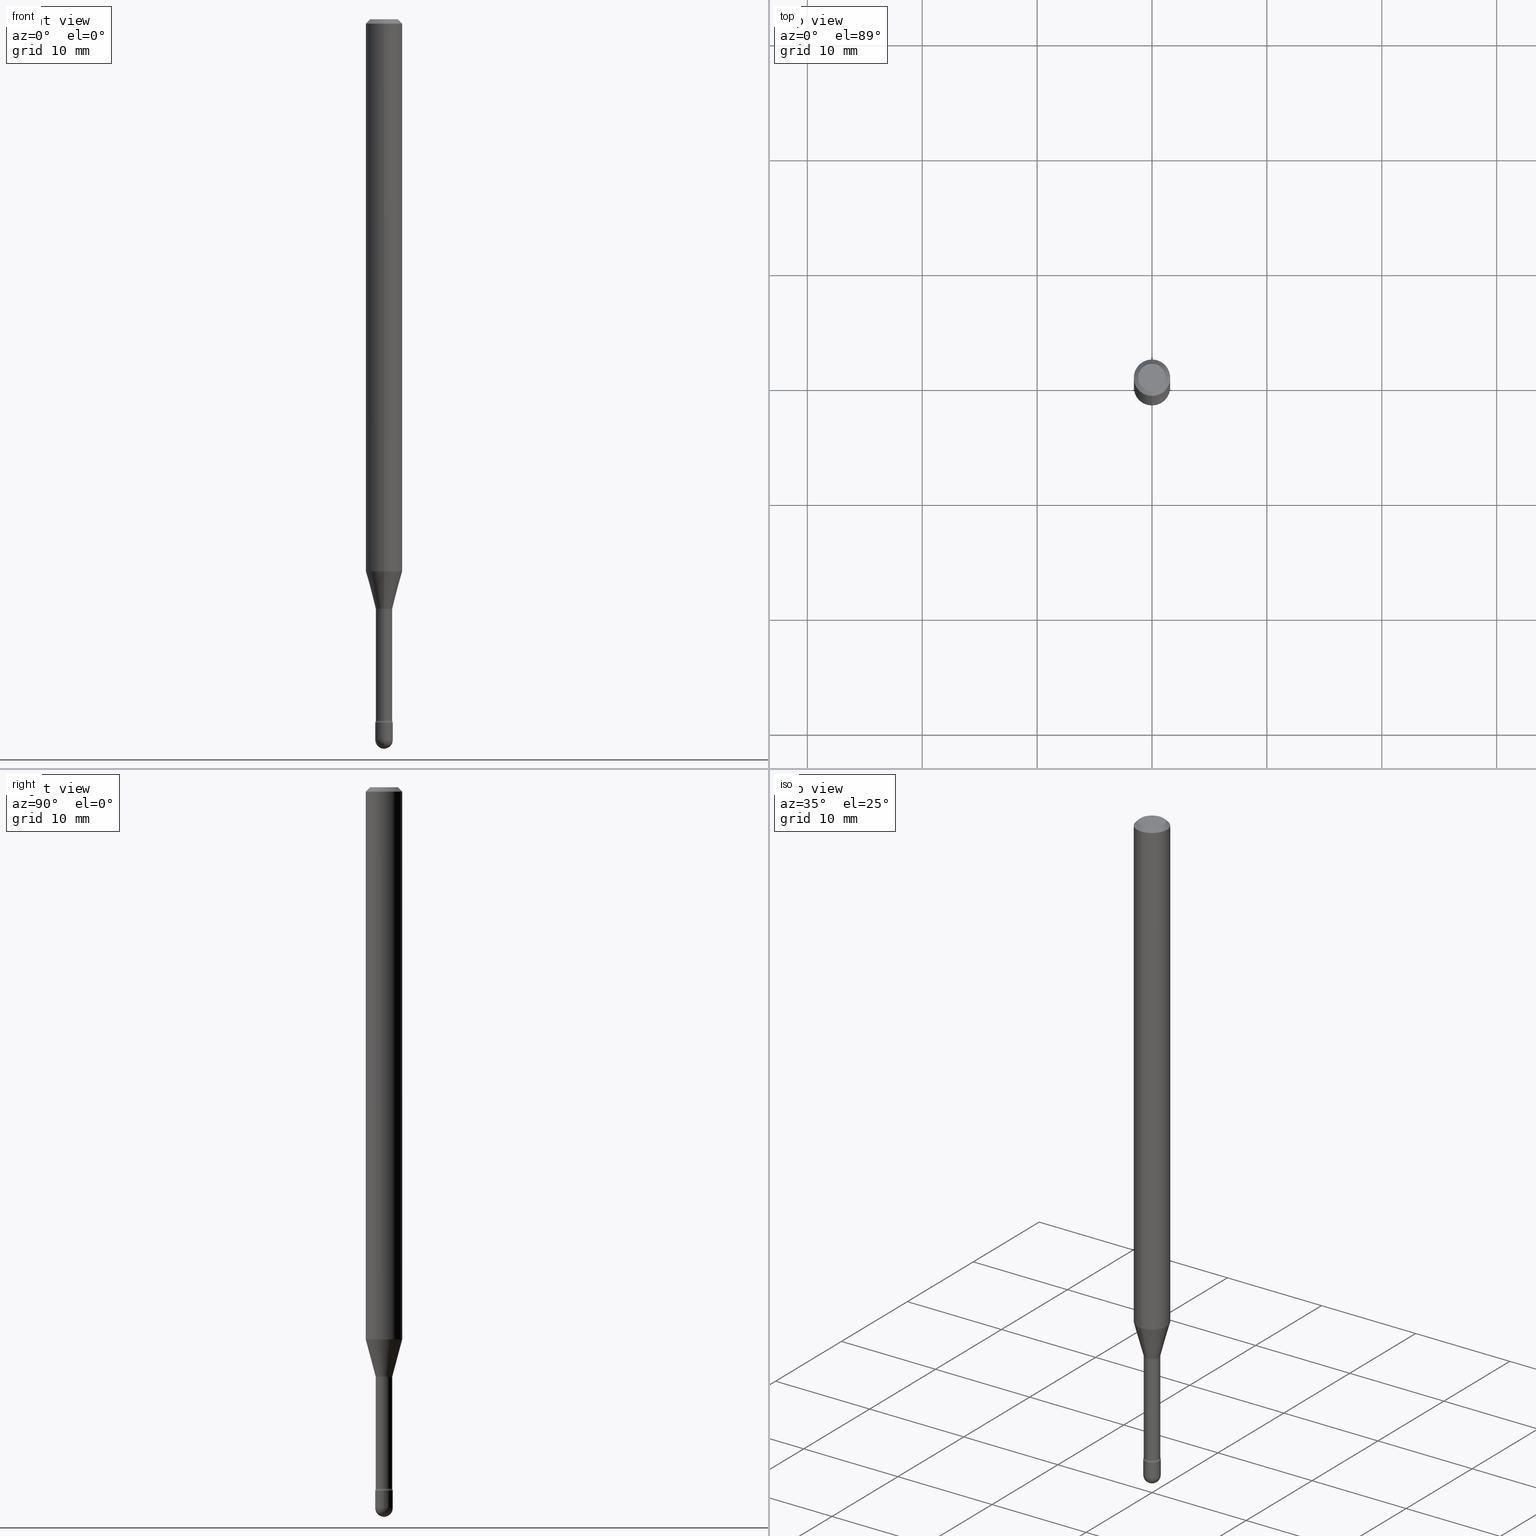
[diagram: canonical four-view strip — front | top / right | iso, engineering-drawing reading convention]
A machine part, canonical four-view strip (front | top / right | iso — engineering-drawing reading convention). The complete STEP part file that produces these views, byte-faithful:
ISO-10303-21;
HEADER;
FILE_DESCRIPTION (( 'STEP AP203' ),
    '1' );
FILE_NAME ('03871.STEP',
    '2024-04-09T20:52:10',
    ( '' ),
    ( '' ),
    'SwSTEP 2.0',
    'SolidWorks 2023',
    '' );
FILE_SCHEMA (( 'CONFIG_CONTROL_DESIGN' ));
ENDSEC;

DATA;
#1 = APPROVAL_ROLE ( '' ) ;
#2 = DIRECTION ( 'NONE',  ( -2.445510975464045356E-29, 3.491420950035621871E-15, 1.000000000000000000 ) ) ;
#3 = COORDINATED_UNIVERSAL_TIME_OFFSET ( 5, 0, .BEHIND. ) ;
#4 = ADVANCED_FACE ( 'NONE', ( #247 ), #37, .T. ) ;
#5 = FACE_OUTER_BOUND ( 'NONE', #219, .T. ) ;
#6 = DIMENSIONAL_EXPONENTS ( 1.000000000000000000, 0.000000000000000000, 0.000000000000000000, 0.000000000000000000, 0.000000000000000000, 0.000000000000000000, 0.000000000000000000 ) ;
#7 = ORIENTED_EDGE ( 'NONE', *, *, #90, .F. ) ;
#8 = DATE_TIME_ROLE ( 'classification_date' ) ;
#9 = DIRECTION ( 'NONE',  ( -2.445510975464045356E-29, 3.491420950035621871E-15, 1.000000000000000000 ) ) ;
#10 = AXIS2_PLACEMENT_3D ( 'NONE', #86, #9, #261 ) ;
#11 = PERSON_AND_ORGANIZATION ( #423, #78 ) ;
#12 = CARTESIAN_POINT ( 'NONE',  ( -1.169113584055446105E-44, 1.669184350826100908E-30, 4.780733988912460139E-16 ) ) ;
#13 = ORIENTED_EDGE ( 'NONE', *, *, #323, .F. ) ;
#14 = CYLINDRICAL_SURFACE ( 'NONE', #297, 0.02820000000000000631 ) ;
#15 = DIRECTION ( 'NONE',  ( -2.445510975464045356E-29, 3.491420950035621871E-15, 1.000000000000000000 ) ) ;
#16 = EDGE_LOOP ( 'NONE', ( #84, #549, #248, #277 ) ) ;
#17 = TOROIDAL_SURFACE ( 'NONE', #205, 0.04320000000000000229, 0.01500000000000002720 ) ;
#18 = CARTESIAN_POINT ( 'NONE',  ( 5.893681450868349867E-29, -8.414324489585849411E-15, -2.410000000000000142 ) ) ;
#19 = ORIENTED_EDGE ( 'NONE', *, *, #430, .F. ) ;
#20 = ADVANCED_BREP_SHAPE_REPRESENTATION ( '03871', ( #272, #274, #473 ), #336 ) ;
#21 = CARTESIAN_POINT ( 'NONE',  ( -0.02999999999999999889, -8.306051646049246381E-15, -2.410000000000000142 ) ) ;
#22 = ORIENTED_EDGE ( 'NONE', *, *, #427, .F. ) ;
#23 = CARTESIAN_POINT ( 'NONE',  ( 2.067679361062481029E-16, 0.02819999999999163107, -2.402875394747777449 ) ) ;
#24 = VERTEX_POINT ( 'NONE', #469 ) ;
#25 = AXIS2_PLACEMENT_3D ( 'NONE', #294, #340, #71 ) ;
#26 = CIRCLE ( 'NONE', #421, 0.02999999999999997807 ) ;
#27 = DIRECTION ( 'NONE',  ( -2.445510975464045356E-29, 3.491420950035621871E-15, 1.000000000000000000 ) ) ;
#28 = AXIS2_PLACEMENT_3D ( 'NONE', #152, #327, #31 ) ;
#29 = EDGE_LOOP ( 'NONE', ( #537, #30, #244, #459 ) ) ;
#30 = ORIENTED_EDGE ( 'NONE', *, *, #291, .F. ) ;
#31 = DIRECTION ( 'NONE',  ( 1.000000000000000000, -6.982962677686268288E-15, 0.000000000000000000 ) ) ;
#32 = DIRECTION ( 'NONE',  ( -2.445468806185136597E-29, 3.491481338843145583E-15, 1.000000000000000000 ) ) ;
#33 = DIRECTION ( 'NONE',  ( -2.445510975464045356E-29, 3.491420950035621871E-15, 1.000000000000000000 ) ) ;
#34 = VECTOR ( 'NONE', #53, 39.37007874015748143 ) ;
#35 = ORIENTED_EDGE ( 'NONE', *, *, #235, .T. ) ;
#36 = CIRCLE ( 'NONE', #216, 0.02999999999999999889 ) ;
#37 = SPHERICAL_SURFACE ( 'NONE', #325, 0.02999999999999997807 ) ;
#38 = DIRECTION ( 'NONE',  ( -6.982962677686265922E-15, -1.000000000000000000, 3.483106191921935554E-15 ) ) ;
#39 = FACE_OUTER_BOUND ( 'NONE', #188, .T. ) ;
#40 = CLOSED_SHELL ( 'NONE', ( #514, #283, #509, #181, #91, #190, #450, #280, #518, #390, #160, #72, #206, #522 ) ) ;
#41 = CC_DESIGN_APPROVAL ( #127, ( #242 ) ) ;
#42 = COORDINATED_UNIVERSAL_TIME_OFFSET ( 5, 0, .BEHIND. ) ;
#43 = CARTESIAN_POINT ( 'NONE',  ( 6.040307951277287977E-29, -8.623958906942569995E-15, -2.470000000000000195 ) ) ;
#44 = EDGE_LOOP ( 'NONE', ( #234, #415, #7, #99 ) ) ;
#45 = CALENDAR_DATE ( 2024, 9, 4 ) ;
#46 = DIRECTION ( 'NONE',  ( 1.000000000000000000, -6.982962677686299054E-15, 0.000000000000000000 ) ) ;
#47 = EDGE_LOOP ( 'NONE', ( #194, #57, #490, #61 ) ) ;
#48 = DIRECTION ( 'NONE',  ( -2.445510975464045356E-29, 3.491420950035621871E-15, 1.000000000000000000 ) ) ;
#49 = VERTEX_POINT ( 'NONE', #77 ) ;
#50 = CIRCLE ( 'NONE', #94, 0.02999999999999999889 ) ;
#51 = PERSON_AND_ORGANIZATION_ROLE ( 'design_supplier' ) ;
#52 = EDGE_CURVE ( 'NONE', #552, #308, #249, .T. ) ;
#53 = DIRECTION ( 'NONE',  ( -2.445468806185136877E-29, 3.491481338843145188E-15, 1.000000000000000000 ) ) ;
#54 = ORIENTED_EDGE ( 'NONE', *, *, #235, .F. ) ;
#55 = CARTESIAN_POINT ( 'NONE',  ( -3.773273898774340269E-16, -0.04749999999999999362, 8.309259458678925801E-17 ) ) ;
#56 = LINE ( 'NONE', #413, #446 ) ;
#57 = ORIENTED_EDGE ( 'NONE', *, *, #437, .T. ) ;
#58 = PRODUCT_DEFINITION_SHAPE ( 'NONE', 'NONE',  #462 ) ;
#59 = CIRCLE ( 'NONE', #362, 0.03000000000000000583 ) ;
#60 = DIRECTION ( 'NONE',  ( -6.982962677686265922E-15, -1.000000000000000000, 0.000000000000000000 ) ) ;
#61 = ORIENTED_EDGE ( 'NONE', *, *, #223, .F. ) ;
#62 = DIRECTION ( 'NONE',  ( -2.445510975464045356E-29, 3.491420950035621871E-15, 1.000000000000000000 ) ) ;
#63 = ORIENTED_EDGE ( 'NONE', *, *, #491, .F. ) ;
#64 = DIRECTION ( 'NONE',  ( -2.445510975464045356E-29, 3.491420950035621871E-15, 1.000000000000000000 ) ) ;
#65 = EDGE_LOOP ( 'NONE', ( #408, #110, #528, #532 ) ) ;
#66 = CIRCLE ( 'NONE', #454, 0.02999999999999999889 ) ;
#67 = AXIS2_PLACEMENT_3D ( 'NONE', #547, #320, #499 ) ;
#68 = PERSON_AND_ORGANIZATION ( #423, #78 ) ;
#69 = VERTEX_POINT ( 'NONE', #74 ) ;
#70 = CARTESIAN_POINT ( 'NONE',  ( 0.000000000000000000, 0.000000000000000000, 0.000000000000000000 ) ) ;
#71 = DIRECTION ( 'NONE',  ( -6.982962677686265922E-15, -1.000000000000000000, 3.491420950035621871E-15 ) ) ;
#72 = ADVANCED_FACE ( 'NONE', ( #163 ), #143, .F. ) ;
#73 = CARTESIAN_POINT ( 'NONE',  ( 5.876258150528190096E-29, -8.389449493547505096E-15, -2.402875394747777449 ) ) ;
#74 = CARTESIAN_POINT ( 'NONE',  ( 3.840629472727447874E-16, 0.04749999999999999362, -2.485923956665947867E-16 ) ) ;
#75 = CARTESIAN_POINT ( 'NONE',  ( 2.023859499993871307E-45, -2.888858660759126443E-31, -8.274990053990278283E-17 ) ) ;
#76 = AXIS2_PLACEMENT_3D ( 'NONE', #79, #420, #302 ) ;
#77 = CARTESIAN_POINT ( 'NONE',  ( -1.969195475106940801E-16, -0.02820000000000840584, -2.402875394747777449 ) ) ;
#78 = ORGANIZATION ( 'UNSPECIFIED', 'UNSPECIFIED', '' ) ;
#79 = CARTESIAN_POINT ( 'NONE',  ( 5.876156823005485882E-29, -8.389594600327222537E-15, -2.402875394747777449 ) ) ;
#80 = APPROVAL_ROLE ( '' ) ;
#81 = DIRECTION ( 'NONE',  ( 1.000000000000000000, -6.982962677686265922E-15, 4.876176775795935793E-29 ) ) ;
#82 = CIRCLE ( 'NONE', #405, 0.03000000000000000583 ) ;
#83 = CC_DESIGN_APPROVAL ( #213, ( #462 ) ) ;
#84 = ORIENTED_EDGE ( 'NONE', *, *, #427, .T. ) ;
#85 = APPROVAL ( #178, 'UNSPECIFIED' ) ;
#86 = CARTESIAN_POINT ( 'NONE',  ( -1.169113584055446105E-44, 1.669184350826100908E-30, 4.780733988912460139E-16 ) ) ;
#87 = COORDINATED_UNIVERSAL_TIME_OFFSET ( 5, 0, .BEHIND. ) ;
#88 = CARTESIAN_POINT ( 'NONE',  ( 4.626883917903531477E-29, -6.605735818170240970E-15, -1.891990657300387735 ) ) ;
#89 = ORIENTED_EDGE ( 'NONE', *, *, #430, .T. ) ;
#90 = EDGE_CURVE ( 'NONE', #108, #185, #360, .T. ) ;
#91 = ADVANCED_FACE ( 'NONE', ( #476 ), #467, .T. ) ;
#92 = FACE_OUTER_BOUND ( 'NONE', #457, .T. ) ;
#93 = CIRCLE ( 'NONE', #351, 0.01500000000000002720 ) ;
#94 = AXIS2_PLACEMENT_3D ( 'NONE', #276, #455, #60 ) ;
#95 = TOROIDAL_SURFACE ( 'NONE', #353, 0.04320000000000005086, 0.01500000000000003240 ) ;
#96 = FACE_OUTER_BOUND ( 'NONE', #410, .T. ) ;
#97 = ORIENTED_EDGE ( 'NONE', *, *, #291, .T. ) ;
#98 = DIRECTION ( 'NONE',  ( -2.445510975464045356E-29, 3.491420950035621871E-15, 1.000000000000000000 ) ) ;
#99 = ORIENTED_EDGE ( 'NONE', *, *, #550, .F. ) ;
#100 = DIRECTION ( 'NONE',  ( -4.851104656540964275E-15, -0.7071067811865500152, -0.7071067811865450192 ) ) ;
#101 = ORIENTED_EDGE ( 'NONE', *, *, #491, .T. ) ;
#102 = AXIS2_PLACEMENT_3D ( 'NONE', #88, #48, #224 ) ;
#103 = AXIS2_PLACEMENT_3D ( 'NONE', #75, #202, #553 ) ;
#104 = CC_DESIGN_PERSON_AND_ORGANIZATION_ASSIGNMENT ( #388, #312, ( #242 ) ) ;
#105 = CARTESIAN_POINT ( 'NONE',  ( -4.287811248607203282E-16, -0.06250000000000005551, -0.01499999999999986587 ) ) ;
#106 = ORIENTED_EDGE ( 'NONE', *, *, #503, .T. ) ;
#107 = DIRECTION ( 'NONE',  ( -2.445510975464045356E-29, 3.491420950035621871E-15, 1.000000000000000000 ) ) ;
#108 = VERTEX_POINT ( 'NONE', #346 ) ;
#109 = LINE ( 'NONE', #187, #377 ) ;
#110 = ORIENTED_EDGE ( 'NONE', *, *, #475, .F. ) ;
#111 = CC_DESIGN_DATE_AND_TIME_ASSIGNMENT ( #533, #477, ( #462 ) ) ;
#112 = AXIS2_PLACEMENT_3D ( 'NONE', #381, #561, #562 ) ;
#113 = VECTOR ( 'NONE', #64, 39.37007874015748143 ) ;
#114 = DIRECTION ( 'NONE',  ( -2.445468806185136597E-29, 3.491481338843145583E-15, 1.000000000000000000 ) ) ;
#115 = CARTESIAN_POINT ( 'NONE',  ( 6.040307951277287977E-29, -8.623958906942569995E-15, -2.470000000000000195 ) ) ;
#116 = LENGTH_MEASURE_WITH_UNIT ( LENGTH_MEASURE( 0.02539999999999999897 ), #207 );
#117 = DIRECTION ( 'NONE',  ( -2.445510975464045356E-29, 3.491420950035621871E-15, 1.000000000000000000 ) ) ;
#118 = DIRECTION ( 'NONE',  ( 1.839019923739598738E-15, 0.2588190451025247363, 0.9659258262890673130 ) ) ;
#119 = ADVANCED_FACE ( 'NONE', ( #379 ), #384, .T. ) ;
#120 = AXIS2_PLACEMENT_3D ( 'NONE', #217, #304, #170 ) ;
#121 = DIRECTION ( 'NONE',  ( 1.000000000000000000, -6.982962677686266711E-15, 4.876176775795935793E-29 ) ) ;
#122 = AXIS2_PLACEMENT_3D ( 'NONE', #284, #107, #510 ) ;
#123 = CARTESIAN_POINT ( 'NONE',  ( 3.069544618484126497E-16, 0.04319999999999293849, -2.021974787463811207 ) ) ;
#124 = COORDINATED_UNIVERSAL_TIME_OFFSET ( 5, 0, .BEHIND. ) ;
#125 = DIRECTION ( 'NONE',  ( -7.105427357601001070E-15, -1.000000000000000000, 0.000000000000000000 ) ) ;
#126 = VERTEX_POINT ( 'NONE', #564 ) ;
#127 = APPROVAL ( #356, 'UNSPECIFIED' ) ;
#128 = EDGE_CURVE ( 'NONE', #552, #541, #425, .T. ) ;
#129 = CARTESIAN_POINT ( 'NONE',  ( 0.03000000000000000583, -2.094888803305880457E-16, 1.462853032738781053E-30 ) ) ;
#130 = AXIS2_PLACEMENT_3D ( 'NONE', #558, #210, #38 ) ;
#131 = AXIS2_PLACEMENT_3D ( 'NONE', #281, #145, #191 ) ;
#132 = EDGE_LOOP ( 'NONE', ( #135, #442, #264, #332 ) ) ;
#133 = CARTESIAN_POINT ( 'NONE',  ( 4.935267362622470466E-29, -7.046010439849886281E-15, -2.018092501787273285 ) ) ;
#134 = EDGE_CURVE ( 'NONE', #270, #238, #369, .T. ) ;
#135 = ORIENTED_EDGE ( 'NONE', *, *, #443, .F. ) ;
#136 = CALENDAR_DATE ( 2024, 9, 4 ) ;
#137 = CC_DESIGN_PERSON_AND_ORGANIZATION_ASSIGNMENT ( #438, #398, ( #462 ) ) ;
#138 = CARTESIAN_POINT ( 'NONE',  ( 0.02999999999999999889, -8.623958906942569995E-15, -2.410000000000000142 ) ) ;
#139 = ORIENTED_EDGE ( 'NONE', *, *, #174, .T. ) ;
#140 = EDGE_CURVE ( 'NONE', #153, #508, #385, .T. ) ;
#141 = ADVANCED_FACE ( 'NONE', ( #39 ), #165, .T. ) ;
#142 = LINE ( 'NONE', #129, #34 ) ;
#143 = TOROIDAL_SURFACE ( 'NONE', #76, 0.04320000000000005086, 0.01500000000000003240 ) ;
#144 = AXIS2_PLACEMENT_3D ( 'NONE', #299, #295, #333 ) ;
#145 = DIRECTION ( 'NONE',  ( -2.445510975464045356E-29, 3.491420950035621871E-15, 1.000000000000000000 ) ) ;
#146 = ORIENTED_EDGE ( 'NONE', *, *, #265, .F. ) ;
#147 = DIRECTION ( 'NONE',  ( -6.982962677686265133E-15, -1.000000000000000000, 0.000000000000000000 ) ) ;
#148 = ORIENTED_EDGE ( 'NONE', *, *, #527, .T. ) ;
#149 = FACE_OUTER_BOUND ( 'NONE', #448, .T. ) ;
#150 = EDGE_LOOP ( 'NONE', ( #97, #396, #22, #494 ) ) ;
#151 = LOCAL_TIME ( 16, 52, 10.00000000000000000, #124 ) ;
#152 = CARTESIAN_POINT ( 'NONE',  ( 5.893579822906179826E-29, -8.414470026611981678E-15, -2.410000000000000142 ) ) ;
#153 = VERTEX_POINT ( 'NONE', #296 ) ;
#154 = DIRECTION ( 'NONE',  ( -6.982962677686265922E-15, -1.000000000000000000, 0.000000000000000000 ) ) ;
#155 = ORIENTED_EDGE ( 'NONE', *, *, #279, .F. ) ;
#156 = CARTESIAN_POINT ( 'NONE',  ( 5.876156823005485882E-29, -8.389594600327222537E-15, -2.402875394747777449 ) ) ;
#157 = CARTESIAN_POINT ( 'NONE',  ( 3.069544618484223625E-16, 0.04319999999999166174, -2.402875394747777893 ) ) ;
#158 = LOCAL_TIME ( 16, 52, 10.00000000000000000, #87 ) ;
#159 = CARTESIAN_POINT ( 'NONE',  ( 4.944676269635571097E-29, -7.059687238041231398E-15, -2.021974787463811207 ) ) ;
#160 = ADVANCED_FACE ( 'NONE', ( #300 ), #428, .F. ) ;
#161 = CARTESIAN_POINT ( 'NONE',  ( 3.668266463196088177E-31, -5.237131425053461575E-17, -0.01500000000000008271 ) ) ;
#162 = FACE_OUTER_BOUND ( 'NONE', #355, .T. ) ;
#163 = FACE_OUTER_BOUND ( 'NONE', #65, .T. ) ;
#164 = PRODUCT_RELATED_PRODUCT_CATEGORY ( 'detail', '', ( #392 ) ) ;
#165 = CYLINDRICAL_SURFACE ( 'NONE', #397, 0.03000000000000000583 ) ;
#166 = CIRCLE ( 'NONE', #122, 0.02819999999999999243 ) ;
#167 = LOCAL_TIME ( 16, 52, 10.00000000000000000, #492 ) ;
#168 = DIRECTION ( 'NONE',  ( 1.000000000000000000, -6.982962677686268288E-15, 0.000000000000000000 ) ) ;
#169 = CALENDAR_DATE ( 2024, 9, 4 ) ;
#170 = DIRECTION ( 'NONE',  ( -6.982962677686265922E-15, -1.000000000000000000, 0.000000000000000000 ) ) ;
#171 = DIRECTION ( 'NONE',  ( -1.000000000000000000, 6.982962677686265922E-15, -4.883557194083112340E-29 ) ) ;
#172 = EDGE_CURVE ( 'NONE', #321, #502, #66, .T. ) ;
#173 = SECURITY_CLASSIFICATION_LEVEL ( 'unclassified' ) ;
#174 = EDGE_CURVE ( 'NONE', #465, #359, #495, .T. ) ;
#175 = DIRECTION ( 'NONE',  ( -2.445510975464045356E-29, 3.491420950035621871E-15, 1.000000000000000000 ) ) ;
#176 = AXIS2_PLACEMENT_3D ( 'NONE', #429, #376, #212 ) ;
#177 = ORIENTED_EDGE ( 'NONE', *, *, #223, .T. ) ;
#178 = APPROVAL_STATUS ( 'not_yet_approved' ) ;
#179 = DIRECTION ( 'NONE',  ( -2.445510975464045356E-29, 3.491420950035621871E-15, 1.000000000000000000 ) ) ;
#180 = ORIENTED_EDGE ( 'NONE', *, *, #172, .F. ) ;
#181 = ADVANCED_FACE ( 'NONE', ( #419 ), #529, .T. ) ;
#182 = CC_DESIGN_PERSON_AND_ORGANIZATION_ASSIGNMENT ( #68, #243, ( #392 ) ) ;
#183 = APPLICATION_CONTEXT ( 'configuration controlled 3d designs of mechanical parts and assemblies' ) ;
#184 = CARTESIAN_POINT ( 'NONE',  ( -2.131628207279695521E-16, -0.03000000000000861353, -2.470000000000000195 ) ) ;
#185 = VERTEX_POINT ( 'NONE', #184 ) ;
#186 = ADVANCED_FACE ( 'NONE', ( #96 ), #389, .T. ) ;
#187 = CARTESIAN_POINT ( 'NONE',  ( -0.03000000000000000583, 2.131628207280300972E-16, -1.475680527076471882E-30 ) ) ;
#188 = EDGE_LOOP ( 'NONE', ( #487, #543, #180, #275, #226 ) ) ;
#189 = CIRCLE ( 'NONE', #298, 0.02820000000000002019 ) ;
#190 = ADVANCED_FACE ( 'NONE', ( #447 ), #278, .T. ) ;
#191 = DIRECTION ( 'NONE',  ( -6.982962677686265922E-15, -1.000000000000000000, 4.370956789862821150E-15 ) ) ;
#192 = ORIENTED_EDGE ( 'NONE', *, *, #503, .F. ) ;
#193 = DIRECTION ( 'NONE',  ( -6.982962677686266711E-15, -1.000000000000000000, 3.491420950035622265E-15 ) ) ;
#194 = ORIENTED_EDGE ( 'NONE', *, *, #382, .F. ) ;
#195 = PLANE ( 'NONE',  #516 ) ;
#196 = ORIENTED_EDGE ( 'NONE', *, *, #555, .T. ) ;
#197 = TOROIDAL_SURFACE ( 'NONE', #496, 0.04320000000000000229, 0.01500000000000002720 ) ;
#198 = CARTESIAN_POINT ( 'NONE',  ( 2.023859499993871307E-45, -2.888858660759126443E-31, -8.274990053990278283E-17 ) ) ;
#199 = EDGE_LOOP ( 'NONE', ( #545, #139, #101, #13 ) ) ;
#200 = APPLICATION_PROTOCOL_DEFINITION ( 'international standard', 'config_control_design', 1994, #222 ) ;
#201 = ORIENTED_EDGE ( 'NONE', *, *, #337, .F. ) ;
#202 = DIRECTION ( 'NONE',  ( -2.445510975464045356E-29, 3.491420950035621871E-15, 1.000000000000000000 ) ) ;
#203 = DIRECTION ( 'NONE',  ( 1.000000000000000000, -7.105427357601001070E-15, 4.926314768992483620E-29 ) ) ;
#204 = AXIS2_PLACEMENT_3D ( 'NONE', #157, #334, #515 ) ;
#205 = AXIS2_PLACEMENT_3D ( 'NONE', #159, #293, #246 ) ;
#206 = ADVANCED_FACE ( 'NONE', ( #358 ), #259, .T. ) ;
#207 =( LENGTH_UNIT ( ) NAMED_UNIT ( * ) SI_UNIT ( $, .METRE. ) );
#208 = DIRECTION ( 'NONE',  ( -6.982962677686265922E-15, -1.000000000000000000, 3.491420950035622660E-15 ) ) ;
#209 =( CONVERSION_BASED_UNIT ( 'INCH', #116 ) LENGTH_UNIT ( ) NAMED_UNIT ( #6 ) );
#210 = DIRECTION ( 'NONE',  ( -2.445510975464045356E-29, 3.491420950035621871E-15, 1.000000000000000000 ) ) ;
#211 = APPLICATION_PROTOCOL_DEFINITION ( 'international standard', 'config_control_design', 1994, #183 ) ;
#212 = DIRECTION ( 'NONE',  ( 6.982962677686265922E-15, 1.000000000000000000, 0.000000000000000000 ) ) ;
#213 = APPROVAL ( #290, 'UNSPECIFIED' ) ;
#214 = VECTOR ( 'NONE', #118, 39.37007874015748854 ) ;
#215 = DATE_AND_TIME ( #136, #158 ) ;
#216 = AXIS2_PLACEMENT_3D ( 'NONE', #18, #363, #506 ) ;
#217 = CARTESIAN_POINT ( 'NONE',  ( 4.935267362622470466E-29, -7.046010439849886281E-15, -2.018092501787273285 ) ) ;
#218 = LINE ( 'NONE', #536, #472 ) ;
#219 = EDGE_LOOP ( 'NONE', ( #366, #89, #201, #372 ) ) ;
#220 = APPROVAL_DATE_TIME ( #445, #213 ) ;
#221 = DIRECTION ( 'NONE',  ( -2.445468806185136597E-29, 3.491481338843145583E-15, 1.000000000000000000 ) ) ;
#222 = APPLICATION_CONTEXT ( 'configuration controlled 3d designs of mechanical parts and assemblies' ) ;
#223 = EDGE_CURVE ( 'NONE', #69, #238, #350, .T. ) ;
#224 = DIRECTION ( 'NONE',  ( -6.982962677686265922E-15, -1.000000000000000000, 4.370956789862821150E-15 ) ) ;
#225 = CIRCLE ( 'NONE', #288, 0.02999999999999997807 ) ;
#226 = ORIENTED_EDGE ( 'NONE', *, *, #140, .T. ) ;
#227 = APPROVAL_ROLE ( '' ) ;
#228 = CARTESIAN_POINT ( 'NONE',  ( -3.016639876759972611E-16, -0.04320000000000705914, -2.021974787463810763 ) ) ;
#229 = CARTESIAN_POINT ( 'NONE',  ( 3.668266463196088177E-31, -5.237131425053461575E-17, -0.01500000000000008271 ) ) ;
#230 = CC_DESIGN_DATE_AND_TIME_ASSIGNMENT ( #215, #8, ( #242 ) ) ;
#231 = LINE ( 'NONE', #544, #370 ) ;
#232 = ORIENTED_EDGE ( 'NONE', *, *, #386, .T. ) ;
#233 = CARTESIAN_POINT ( 'NONE',  ( -4.364351673553455210E-16, -0.06250000000000663358, -1.891990657300387513 ) ) ;
#234 = ORIENTED_EDGE ( 'NONE', *, *, #311, .F. ) ;
#235 = EDGE_CURVE ( 'NONE', #185, #153, #82, .T. ) ;
#236 = DIRECTION ( 'NONE',  ( -6.982962677686265922E-15, -1.000000000000000000, 3.483106191921935554E-15 ) ) ;
#237 = ADVANCED_FACE ( 'NONE', ( #267 ), #271, .T. ) ;
#238 = VERTEX_POINT ( 'NONE', #395 ) ;
#239 = DIRECTION ( 'NONE',  ( -6.982962677686263555E-15, -1.000000000000000000, 0.000000000000000000 ) ) ;
#240 = ORIENTED_EDGE ( 'NONE', *, *, #437, .F. ) ;
#241 = CIRCLE ( 'NONE', #102, 0.06250000000000000000 ) ;
#242 = SECURITY_CLASSIFICATION ( '', '', #173 ) ;
#243 = PERSON_AND_ORGANIZATION_ROLE ( 'design_owner' ) ;
#244 = ORIENTED_EDGE ( 'NONE', *, *, #262, .T. ) ;
#245 = EDGE_CURVE ( 'NONE', #49, #126, #218, .T. ) ;
#246 = DIRECTION ( 'NONE',  ( -6.982962677686266711E-15, -1.000000000000000000, 3.491420950035621871E-15 ) ) ;
#247 = FACE_OUTER_BOUND ( 'NONE', #44, .T. ) ;
#248 = ORIENTED_EDGE ( 'NONE', *, *, #134, .F. ) ;
#249 = CIRCLE ( 'NONE', #315, 0.01500000000000002720 ) ;
#250 = DIRECTION ( 'NONE',  ( 1.000000000000000000, -6.982962677686299054E-15, 0.000000000000000000 ) ) ;
#251 = DIRECTION ( 'NONE',  ( 7.105427357601001859E-15, 1.000000000000000000, 0.000000000000000000 ) ) ;
#252 = DIRECTION ( 'NONE',  ( -6.982962677686265133E-15, -1.000000000000000000, 0.000000000000000000 ) ) ;
#253 = EDGE_CURVE ( 'NONE', #153, #321, #142, .T. ) ;
#254 = CARTESIAN_POINT ( 'NONE',  ( 2.040047249754971165E-16, 0.02871111260565692783, -2.018092501787273285 ) ) ;
#255 = DIRECTION ( 'NONE',  ( 1.000000000000000000, -6.982962677686299054E-15, 0.000000000000000000 ) ) ;
#256 = CLOSED_SHELL ( 'NONE', ( #141, #4, #186, #119, #237 ) ) ;
#257 = DATE_AND_TIME ( #45, #317 ) ;
#258 = AXIS2_PLACEMENT_3D ( 'NONE', #551, #62, #154 ) ;
#259 = CYLINDRICAL_SURFACE ( 'NONE', #10, 0.02820000000000000631 ) ;
#260 = ORIENTED_EDGE ( 'NONE', *, *, #90, .T. ) ;
#261 = DIRECTION ( 'NONE',  ( -6.982962677686265133E-15, -1.000000000000000000, 3.491420950035621477E-15 ) ) ;
#262 = EDGE_CURVE ( 'NONE', #401, #126, #93, .T. ) ;
#263 = CARTESIAN_POINT ( 'NONE',  ( -4.364351673553912750E-16, -0.06250000000000005551, -0.01499999999999986587 ) ) ;
#264 = ORIENTED_EDGE ( 'NONE', *, *, #329, .T. ) ;
#265 = EDGE_CURVE ( 'NONE', #436, #185, #225, .T. ) ;
#266 = CIRCLE ( 'NONE', #444, 0.01500000000000003587 ) ;
#267 = FACE_OUTER_BOUND ( 'NONE', #282, .T. ) ;
#268 = AXIS2_PLACEMENT_3D ( 'NONE', #161, #339, #307 ) ;
#269 = CIRCLE ( 'NONE', #422, 0.02820000000000002019 ) ;
#270 = VERTEX_POINT ( 'NONE', #263 ) ;
#271 = CYLINDRICAL_SURFACE ( 'NONE', #513, 0.03000000000000000583 ) ;
#272 = MANIFOLD_SOLID_BREP ( 'Body-Move/Copy2[1]', #256 ) ;
#273 = CARTESIAN_POINT ( 'NONE',  ( 5.876258150528190096E-29, -8.389449493547505096E-15, -2.402875394747777449 ) ) ;
#274 = MANIFOLD_SOLID_BREP ( 'Body-Move/Copy2[2]', #40 ) ;
#275 = ORIENTED_EDGE ( 'NONE', *, *, #253, .F. ) ;
#276 = CARTESIAN_POINT ( 'NONE',  ( 5.893681450868349867E-29, -8.414324489585849411E-15, -2.410000000000000142 ) ) ;
#277 = ORIENTED_EDGE ( 'NONE', *, *, #386, .F. ) ;
#278 = CONICAL_SURFACE ( 'NONE', #565, 0.02871111260566397427, 0.2617993877991500740 ) ;
#279 = EDGE_CURVE ( 'NONE', #541, #324, #241, .T. ) ;
#280 = ADVANCED_FACE ( 'NONE', ( #92 ), #402, .T. ) ;
#281 = CARTESIAN_POINT ( 'NONE',  ( 4.626883917903531477E-29, -6.605735818170240970E-15, -1.891990657300387735 ) ) ;
#282 = EDGE_LOOP ( 'NONE', ( #452, #260, #35, #404, #192 ) ) ;
#283 = ADVANCED_FACE ( 'NONE', ( #5 ), #14, .T. ) ;
#284 = CARTESIAN_POINT ( 'NONE',  ( 4.944761534854330481E-29, -7.059565133394973090E-15, -2.021974787463811207 ) ) ;
#285 = ORIENTED_EDGE ( 'NONE', *, *, #279, .T. ) ;
#286 = CARTESIAN_POINT ( 'NONE',  ( -2.004886277601498644E-16, -0.02871111260567102419, -2.018092501787273285 ) ) ;
#287 = ORIENTED_EDGE ( 'NONE', *, *, #329, .F. ) ;
#288 = AXIS2_PLACEMENT_3D ( 'NONE', #531, #316, #125 ) ;
#289 = CIRCLE ( 'NONE', #103, 0.04749999999999999362 ) ;
#290 = APPROVAL_STATUS ( 'not_yet_approved' ) ;
#291 = EDGE_CURVE ( 'NONE', #401, #552, #557, .T. ) ;
#292 = CARTESIAN_POINT ( 'NONE',  ( 6.040307951277287977E-29, -8.623958906942569995E-15, -2.470000000000000195 ) ) ;
#293 = DIRECTION ( 'NONE',  ( -2.445510975464045356E-29, 3.491420950035621871E-15, 1.000000000000000000 ) ) ;
#294 = CARTESIAN_POINT ( 'NONE',  ( 2.094888803306469144E-16, 0.02999999999999158548, -2.410000000000000142 ) ) ;
#295 = DIRECTION ( 'NONE',  ( 2.445510975464045356E-29, -3.491420950035621871E-15, -1.000000000000000000 ) ) ;
#296 = CARTESIAN_POINT ( 'NONE',  ( 0.03000000000000000583, -8.728703347107864943E-15, -2.470000000000000195 ) ) ;
#297 = AXIS2_PLACEMENT_3D ( 'NONE', #12, #179, #497 ) ;
#298 = AXIS2_PLACEMENT_3D ( 'NONE', #273, #367, #451 ) ;
#299 = CARTESIAN_POINT ( 'NONE',  ( 3.668266463196088177E-31, -5.237131425053461575E-17, -0.01500000000000008271 ) ) ;
#300 = FACE_OUTER_BOUND ( 'NONE', #511, .T. ) ;
#301 = PERSON_AND_ORGANIZATION ( #423, #78 ) ;
#302 = DIRECTION ( 'NONE',  ( -6.982962677686265133E-15, -1.000000000000000000, 3.491420950035621871E-15 ) ) ;
#303 = CALENDAR_DATE ( 2024, 9, 4 ) ;
#304 = DIRECTION ( 'NONE',  ( -2.445510975464045356E-29, 3.491420950035621871E-15, 1.000000000000000000 ) ) ;
#305 = ORIENTED_EDGE ( 'NONE', *, *, #443, .T. ) ;
#306 = CIRCLE ( 'NONE', #131, 0.06250000000000000000 ) ;
#307 = DIRECTION ( 'NONE',  ( 6.982962677686265922E-15, 1.000000000000000000, -3.483106191921935554E-15 ) ) ;
#308 = VERTEX_POINT ( 'NONE', #357 ) ;
#309 = CARTESIAN_POINT ( 'NONE',  ( 0.000000000000000000, 0.000000000000000000, 0.000000000000000000 ) ) ;
#310 = ORIENTED_EDGE ( 'NONE', *, *, #435, .F. ) ;
#311 = EDGE_CURVE ( 'NONE', #436, #508, #26, .T. ) ;
#312 = PERSON_AND_ORGANIZATION_ROLE ( 'classification_officer' ) ;
#313 = CARTESIAN_POINT ( 'NONE',  ( -3.016639876759882878E-16, -0.04320000000000843998, -2.402875394747777005 ) ) ;
#314 = ORIENTED_EDGE ( 'NONE', *, *, #382, .T. ) ;
#315 = AXIS2_PLACEMENT_3D ( 'NONE', #123, #203, #251 ) ;
#316 = DIRECTION ( 'NONE',  ( -1.000000000000000000, 7.105427357601001070E-15, -4.926315508542082329E-29 ) ) ;
#317 = LOCAL_TIME ( 16, 52, 10.00000000000000000, #42 ) ;
#318 = DIRECTION ( 'NONE',  ( -2.445510975464045356E-29, 3.491420950035621871E-15, 1.000000000000000000 ) ) ;
#319 = EDGE_LOOP ( 'NONE', ( #364, #305, #394, #155 ) ) ;
#320 = DIRECTION ( 'NONE',  ( -2.445510975464045356E-29, 3.491420950035621871E-15, 1.000000000000000000 ) ) ;
#321 = VERTEX_POINT ( 'NONE', #138 ) ;
#322 = CARTESIAN_POINT ( 'NONE',  ( 3.316907271900976096E-16, 0.04749999999999999362, 3.181925404897964249E-17 ) ) ;
#323 = EDGE_CURVE ( 'NONE', #49, #24, #266, .T. ) ;
#324 = VERTEX_POINT ( 'NONE', #233 ) ;
#325 = AXIS2_PLACEMENT_3D ( 'NONE', #115, #517, #523 ) ;
#326 = AXIS2_PLACEMENT_3D ( 'NONE', #198, #501, #193 ) ;
#327 = DIRECTION ( 'NONE',  ( -2.445468806185136597E-29, 3.491481338843145583E-15, 1.000000000000000000 ) ) ;
#328 = ORIENTED_EDGE ( 'NONE', *, *, #172, .T. ) ;
#329 = EDGE_CURVE ( 'NONE', #308, #126, #483, .T. ) ;
#330 = EDGE_CURVE ( 'NONE', #401, #324, #403, .T. ) ;
#331 = CARTESIAN_POINT ( 'NONE',  ( 2.131628207280890399E-16, 0.02999999999999159589, -2.410000000000000142 ) ) ;
#332 = ORIENTED_EDGE ( 'NONE', *, *, #262, .F. ) ;
#333 = DIRECTION ( 'NONE',  ( 6.982962677686265922E-15, 1.000000000000000000, -3.483106191921935554E-15 ) ) ;
#334 = DIRECTION ( 'NONE',  ( 1.000000000000000000, -7.105427357601001070E-15, 4.926314768992483620E-29 ) ) ;
#335 = CC_DESIGN_PERSON_AND_ORGANIZATION_ASSIGNMENT ( #301, #524, ( #343 ) ) ;
#336 =( GEOMETRIC_REPRESENTATION_CONTEXT ( 3 ) GLOBAL_UNCERTAINTY_ASSIGNED_CONTEXT ( ( #380 ) ) GLOBAL_UNIT_ASSIGNED_CONTEXT ( ( #209, #424, #373 ) ) REPRESENTATION_CONTEXT ( 'NONE', 'WORKASPACE' ) );
#337 = EDGE_CURVE ( 'NONE', #126, #308, #166, .T. ) ;
#338 = CARTESIAN_POINT ( 'NONE',  ( 4.944676269635571097E-29, -7.059687238041231398E-15, -2.021974787463811207 ) ) ;
#339 = DIRECTION ( 'NONE',  ( 2.445510975464045356E-29, -3.491420950035621871E-15, -1.000000000000000000 ) ) ;
#340 = DIRECTION ( 'NONE',  ( -2.445510975464045075E-29, 3.491420950035621871E-15, 1.000000000000000000 ) ) ;
#341 = CARTESIAN_POINT ( 'NONE',  ( 0.000000000000000000, 0.000000000000000000, 0.000000000000000000 ) ) ;
#342 = AXIS2_PLACEMENT_3D ( 'NONE', #365, #318, #147 ) ;
#343 = PRODUCT_DEFINITION_FORMATION_WITH_SPECIFIED_SOURCE ( 'ANY', '', #392, .NOT_KNOWN. ) ;
#344 = APPROVAL_PERSON_ORGANIZATION ( #512, #213, #1 ) ;
#345 = MECHANICAL_CONTEXT ( 'NONE', #183, 'mechanical' ) ;
#346 = CARTESIAN_POINT ( 'NONE',  ( -0.03000000000000000583, -8.306051646049246381E-15, -2.470000000000000195 ) ) ;
#347 = APPROVAL_DATE_TIME ( #257, #127 ) ;
#348 = DIRECTION ( 'NONE',  ( 1.000000000000000000, -6.982962677686265922E-15, 4.883557194083112340E-29 ) ) ;
#349 = EDGE_CURVE ( 'NONE', #541, #238, #231, .T. ) ;
#350 = LINE ( 'NONE', #439, #538 ) ;
#351 = AXIS2_PLACEMENT_3D ( 'NONE', #228, #489, #354 ) ;
#352 = PERSON_AND_ORGANIZATION ( #423, #78 ) ;
#353 = AXIS2_PLACEMENT_3D ( 'NONE', #156, #117, #375 ) ;
#354 = DIRECTION ( 'NONE',  ( -6.982962677686267499E-15, -1.000000000000000000, 0.000000000000000000 ) ) ;
#355 = EDGE_LOOP ( 'NONE', ( #240, #505, #177, #535 ) ) ;
#356 = APPROVAL_STATUS ( 'not_yet_approved' ) ;
#357 = CARTESIAN_POINT ( 'NONE',  ( 2.003730514844070181E-16, 0.02819999999999293211, -2.021974787463811207 ) ) ;
#358 = FACE_OUTER_BOUND ( 'NONE', #412, .T. ) ;
#359 = VERTEX_POINT ( 'NONE', #331 ) ;
#360 = CIRCLE ( 'NONE', #431, 0.03000000000000000583 ) ;
#361 = DIRECTION ( 'NONE',  ( -2.445468806185136877E-29, 3.491481338843145188E-15, 1.000000000000000000 ) ) ;
#362 = AXIS2_PLACEMENT_3D ( 'NONE', #468, #114, #250 ) ;
#363 = DIRECTION ( 'NONE',  ( -2.445510975464045356E-29, 3.491420950035621871E-15, 1.000000000000000000 ) ) ;
#364 = ORIENTED_EDGE ( 'NONE', *, *, #128, .F. ) ;
#365 = CARTESIAN_POINT ( 'NONE',  ( 4.944761534854330481E-29, -7.059565133394973090E-15, -2.021974787463811207 ) ) ;
#366 = ORIENTED_EDGE ( 'NONE', *, *, #475, .T. ) ;
#367 = DIRECTION ( 'NONE',  ( -2.445510975464045356E-29, 3.491420950035621871E-15, 1.000000000000000000 ) ) ;
#368 = VERTEX_POINT ( 'NONE', #55 ) ;
#369 = CIRCLE ( 'NONE', #130, 0.06250000000000000000 ) ;
#370 = VECTOR ( 'NONE', #27, 39.37007874015748143 ) ;
#371 = LINE ( 'NONE', #105, #530 ) ;
#372 = ORIENTED_EDGE ( 'NONE', *, *, #245, .F. ) ;
#373 =( NAMED_UNIT ( * ) SI_UNIT ( $, .STERADIAN. ) SOLID_ANGLE_UNIT ( ) );
#374 = CARTESIAN_POINT ( 'NONE',  ( -1.169113584055446105E-44, 1.669184350826100908E-30, 4.780733988912460139E-16 ) ) ;
#375 = DIRECTION ( 'NONE',  ( -6.982962677686265133E-15, -1.000000000000000000, 3.491420950035621871E-15 ) ) ;
#376 = DIRECTION ( 'NONE',  ( -1.000000000000000000, 6.982962677686265922E-15, -4.883557194083112340E-29 ) ) ;
#377 = VECTOR ( 'NONE', #361, 39.37007874015748143 ) ;
#378 = CARTESIAN_POINT ( 'NONE',  ( 2.094888803306483442E-16, 0.02999999999999137038, -2.470000000000000195 ) ) ;
#379 = FACE_OUTER_BOUND ( 'NONE', #461, .T. ) ;
#380 = UNCERTAINTY_MEASURE_WITH_UNIT (LENGTH_MEASURE( 1.000000000000000082E-05 ), #209, 'distance_accuracy_value', 'NONE');
#381 = CARTESIAN_POINT ( 'NONE',  ( 6.040307951277287977E-29, -8.623958906942569995E-15, -2.470000000000000195 ) ) ;
#382 = EDGE_CURVE ( 'NONE', #368, #69, #466, .T. ) ;
#383 = DIRECTION ( 'NONE',  ( 0.000000000000000000, 0.000000000000000000, 1.000000000000000000 ) ) ;
#384 = SPHERICAL_SURFACE ( 'NONE', #176, 0.02999999999999997807 ) ;
#385 = CIRCLE ( 'NONE', #112, 0.03000000000000000583 ) ;
#386 = EDGE_CURVE ( 'NONE', #324, #270, #56, .T. ) ;
#387 = CONICAL_SURFACE ( 'NONE', #144, 0.06250000000000000000, 0.7853981633974483900 ) ;
#388 = PERSON_AND_ORGANIZATION ( #423, #78 ) ;
#389 = PLANE ( 'NONE',  #464 ) ;
#390 = ADVANCED_FACE ( 'NONE', ( #149 ), #195, .F. ) ;
#391 = CALENDAR_DATE ( 2024, 9, 4 ) ;
#392 = PRODUCT ( '03871', '03871', '', ( #345 ) ) ;
#393 = DIRECTION ( 'NONE',  ( -2.445510975464045356E-29, 3.491420950035621871E-15, 1.000000000000000000 ) ) ;
#394 = ORIENTED_EDGE ( 'NONE', *, *, #330, .T. ) ;
#395 = CARTESIAN_POINT ( 'NONE',  ( 4.440892098501091590E-16, 0.06249999999999995143, -0.01500000000000030129 ) ) ;
#396 = ORIENTED_EDGE ( 'NONE', *, *, #128, .T. ) ;
#397 = AXIS2_PLACEMENT_3D ( 'NONE', #341, #520, #121 ) ;
#398 = PERSON_AND_ORGANIZATION_ROLE ( 'creator' ) ;
#399 = LOCAL_TIME ( 16, 52, 10.00000000000000000, #3 ) ;
#400 = DIRECTION ( 'NONE',  ( -6.982962677686265922E-15, -1.000000000000000000, 3.491420950035622660E-15 ) ) ;
#401 = VERTEX_POINT ( 'NONE', #286 ) ;
#402 = CYLINDRICAL_SURFACE ( 'NONE', #546, 0.06250000000000000000 ) ;
#403 = LINE ( 'NONE', #411, #414 ) ;
#404 = ORIENTED_EDGE ( 'NONE', *, *, #253, .T. ) ;
#405 = AXIS2_PLACEMENT_3D ( 'NONE', #43, #441, #46 ) ;
#406 = CARTESIAN_POINT ( 'NONE',  ( 2.003730514843482726E-16, 0.02820000000000000631, 3.796153281002414986E-16 ) ) ;
#407 = CC_DESIGN_APPROVAL ( #85, ( #343 ) ) ;
#408 = ORIENTED_EDGE ( 'NONE', *, *, #174, .F. ) ;
#409 = LINE ( 'NONE', #406, #113 ) ;
#410 = EDGE_LOOP ( 'NONE', ( #328, #106 ) ) ;
#411 = CARTESIAN_POINT ( 'NONE',  ( -2.004886277601498644E-16, -0.02871111260567102419, -2.018092501787273285 ) ) ;
#412 = EDGE_LOOP ( 'NONE', ( #19, #196, #500, #287 ) ) ;
#413 = CARTESIAN_POINT ( 'NONE',  ( -4.364351673553916201E-16, -0.06250000000000000000, 6.962872082684724302E-16 ) ) ;
#414 = VECTOR ( 'NONE', #540, 39.37007874015748854 ) ;
#415 = ORIENTED_EDGE ( 'NONE', *, *, #265, .T. ) ;
#416 = APPROVAL_PERSON_ORGANIZATION ( #488, #85, #227 ) ;
#417 = EDGE_CURVE ( 'NONE', #108, #502, #109, .T. ) ;
#418 = ORIENTED_EDGE ( 'NONE', *, *, #453, .F. ) ;
#419 = FACE_OUTER_BOUND ( 'NONE', #47, .T. ) ;
#420 = DIRECTION ( 'NONE',  ( -2.445510975464045356E-29, 3.491420950035621871E-15, 1.000000000000000000 ) ) ;
#421 = AXIS2_PLACEMENT_3D ( 'NONE', #534, #348, #525 ) ;
#422 = AXIS2_PLACEMENT_3D ( 'NONE', #73, #519, #252 ) ;
#423 = PERSON ( 'UNSPECIFIED', 'UNSPECIFIED', 'UNSPECIFIED', ('UNSPECIFIED'), ('UNSPECIFIED'), ('UNSPECIFIED') ) ;
#424 =( NAMED_UNIT ( * ) PLANE_ANGLE_UNIT ( ) SI_UNIT ( $, .RADIAN. ) );
#425 = LINE ( 'NONE', #254, #214 ) ;
#426 = FACE_OUTER_BOUND ( 'NONE', #132, .T. ) ;
#427 = EDGE_CURVE ( 'NONE', #324, #541, #306, .T. ) ;
#428 = PLANE ( 'NONE',  #25 ) ;
#429 = CARTESIAN_POINT ( 'NONE',  ( 6.040307951277287977E-29, -8.623958906942569995E-15, -2.470000000000000195 ) ) ;
#430 = EDGE_CURVE ( 'NONE', #465, #308, #409, .T. ) ;
#431 = AXIS2_PLACEMENT_3D ( 'NONE', #292, #471, #255 ) ;
#432 = AXIS2_PLACEMENT_3D ( 'NONE', #229, #98, #236 ) ;
#433 = SHAPE_DEFINITION_REPRESENTATION ( #58, #20 ) ;
#434 = DIRECTION ( 'NONE',  ( 4.937700262164548042E-15, 0.7071067811865451302, -0.7071067811865499042 ) ) ;
#435 = EDGE_CURVE ( 'NONE', #24, #359, #36, .T. ) ;
#436 = VERTEX_POINT ( 'NONE', #542 ) ;
#437 = EDGE_CURVE ( 'NONE', #368, #270, #371, .T. ) ;
#438 = PERSON_AND_ORGANIZATION ( #423, #78 ) ;
#439 = CARTESIAN_POINT ( 'NONE',  ( 4.364351673553919652E-16, 0.06249999999999995143, -0.01500000000000030129 ) ) ;
#440 = ORIENTED_EDGE ( 'NONE', *, *, #140, .F. ) ;
#441 = DIRECTION ( 'NONE',  ( -2.445468806185136597E-29, 3.491481338843145583E-15, 1.000000000000000000 ) ) ;
#442 = ORIENTED_EDGE ( 'NONE', *, *, #52, .T. ) ;
#443 = EDGE_CURVE ( 'NONE', #552, #401, #539, .T. ) ;
#444 = AXIS2_PLACEMENT_3D ( 'NONE', #313, #171, #239 ) ;
#445 = DATE_AND_TIME ( #169, #399 ) ;
#446 = VECTOR ( 'NONE', #15, 39.37007874015748143 ) ;
#447 = FACE_OUTER_BOUND ( 'NONE', #150, .T. ) ;
#448 = EDGE_LOOP ( 'NONE', ( #148, #314 ) ) ;
#449 = CARTESIAN_POINT ( 'NONE',  ( -1.169113584055446105E-44, 1.669184350826100908E-30, 4.780733988912460139E-16 ) ) ;
#450 = ADVANCED_FACE ( 'NONE', ( #458 ), #548, .T. ) ;
#451 = DIRECTION ( 'NONE',  ( -6.982962677686265133E-15, -1.000000000000000000, 0.000000000000000000 ) ) ;
#452 = ORIENTED_EDGE ( 'NONE', *, *, #417, .F. ) ;
#453 = EDGE_CURVE ( 'NONE', #238, #270, #456, .T. ) ;
#454 = AXIS2_PLACEMENT_3D ( 'NONE', #554, #32, #168 ) ;
#455 = DIRECTION ( 'NONE',  ( -2.445510975464045356E-29, 3.491420950035621871E-15, 1.000000000000000000 ) ) ;
#456 = CIRCLE ( 'NONE', #432, 0.06250000000000000000 ) ;
#457 = EDGE_LOOP ( 'NONE', ( #498, #285, #232, #418 ) ) ;
#458 = FACE_OUTER_BOUND ( 'NONE', #319, .T. ) ;
#459 = ORIENTED_EDGE ( 'NONE', *, *, #337, .T. ) ;
#460 = DIRECTION ( 'NONE',  ( 2.445510975464045075E-29, -3.491420950035621871E-15, -1.000000000000000000 ) ) ;
#461 = EDGE_LOOP ( 'NONE', ( #146, #482, #440, #54 ) ) ;
#462 = PRODUCT_DEFINITION ( 'UNKNOWN', '', #343, #479 ) ;
#463 = DIRECTION ( 'NONE',  ( -6.982962677686266711E-15, -1.000000000000000000, 3.491420950035621871E-15 ) ) ;
#464 = AXIS2_PLACEMENT_3D ( 'NONE', #481, #486, #81 ) ;
#465 = VERTEX_POINT ( 'NONE', #23 ) ;
#466 = CIRCLE ( 'NONE', #326, 0.04749999999999999362 ) ;
#467 = CYLINDRICAL_SURFACE ( 'NONE', #521, 0.06250000000000000000 ) ;
#468 = CARTESIAN_POINT ( 'NONE',  ( 6.040307951277287977E-29, -8.623958906942569995E-15, -2.470000000000000195 ) ) ;
#469 = CARTESIAN_POINT ( 'NONE',  ( -2.094888803305291030E-16, -0.03000000000000842618, -2.410000000000000142 ) ) ;
#470 = FACE_OUTER_BOUND ( 'NONE', #29, .T. ) ;
#471 = DIRECTION ( 'NONE',  ( -2.445468806185136597E-29, 3.491481338843145583E-15, 1.000000000000000000 ) ) ;
#472 = VECTOR ( 'NONE', #393, 39.37007874015748143 ) ;
#473 = AXIS2_PLACEMENT_3D ( 'NONE', #70, #383, #563 ) ;
#474 = CARTESIAN_POINT ( 'NONE',  ( 4.440892098501085673E-16, 0.06249999999999335948, -1.891990657300388179 ) ) ;
#475 = EDGE_CURVE ( 'NONE', #49, #465, #189, .T. ) ;
#476 = FACE_OUTER_BOUND ( 'NONE', #16, .T. ) ;
#477 = DATE_TIME_ROLE ( 'creation_date' ) ;
#478 = DIRECTION ( 'NONE',  ( -2.445510975464045356E-29, 3.491420950035621871E-15, 1.000000000000000000 ) ) ;
#479 = DESIGN_CONTEXT ( 'detailed design', #222, 'design' ) ;
#480 = DATE_AND_TIME ( #303, #167 ) ;
#481 = CARTESIAN_POINT ( 'NONE',  ( 5.893579822906179826E-29, -8.414470026611981678E-15, -2.410000000000000142 ) ) ;
#482 = ORIENTED_EDGE ( 'NONE', *, *, #311, .T. ) ;
#483 = CIRCLE ( 'NONE', #342, 0.02819999999999999243 ) ;
#484 = CC_DESIGN_SECURITY_CLASSIFICATION ( #242, ( #343 ) ) ;
#485 = APPROVAL_DATE_TIME ( #480, #85 ) ;
#486 = DIRECTION ( 'NONE',  ( -2.438088387897960049E-29, 3.491481338843145188E-15, 1.000000000000000000 ) ) ;
#487 = ORIENTED_EDGE ( 'NONE', *, *, #550, .T. ) ;
#488 = PERSON_AND_ORGANIZATION ( #423, #78 ) ;
#489 = DIRECTION ( 'NONE',  ( -1.000000000000000000, 6.982962677686265922E-15, -4.883557194083112340E-29 ) ) ;
#490 = ORIENTED_EDGE ( 'NONE', *, *, #134, .T. ) ;
#491 = EDGE_CURVE ( 'NONE', #359, #24, #50, .T. ) ;
#492 = COORDINATED_UNIVERSAL_TIME_OFFSET ( 5, 0, .BEHIND. ) ;
#493 = DIRECTION ( 'NONE',  ( 1.000000000000000000, -6.982962677686266711E-15, 4.876176775795935793E-29 ) ) ;
#494 = ORIENTED_EDGE ( 'NONE', *, *, #330, .F. ) ;
#495 = CIRCLE ( 'NONE', #204, 0.01500000000000003587 ) ;
#496 = AXIS2_PLACEMENT_3D ( 'NONE', #338, #33, #463 ) ;
#497 = DIRECTION ( 'NONE',  ( -6.982962677686265133E-15, -1.000000000000000000, 3.491420950035621477E-15 ) ) ;
#498 = ORIENTED_EDGE ( 'NONE', *, *, #349, .F. ) ;
#499 = DIRECTION ( 'NONE',  ( -6.982962677686265922E-15, -1.000000000000000000, 0.000000000000000000 ) ) ;
#500 = ORIENTED_EDGE ( 'NONE', *, *, #245, .T. ) ;
#501 = DIRECTION ( 'NONE',  ( -2.445510975464045356E-29, 3.491420950035621871E-15, 1.000000000000000000 ) ) ;
#502 = VERTEX_POINT ( 'NONE', #21 ) ;
#503 = EDGE_CURVE ( 'NONE', #502, #321, #559, .T. ) ;
#504 = DIRECTION ( 'NONE',  ( 6.982962677686265922E-15, 1.000000000000000000, -3.491420950035621871E-15 ) ) ;
#505 = ORIENTED_EDGE ( 'NONE', *, *, #527, .F. ) ;
#506 = DIRECTION ( 'NONE',  ( -6.982962677686265922E-15, -1.000000000000000000, 0.000000000000000000 ) ) ;
#507 = CC_DESIGN_PERSON_AND_ORGANIZATION_ASSIGNMENT ( #11, #51, ( #343 ) ) ;
#508 = VERTEX_POINT ( 'NONE', #378 ) ;
#509 = ADVANCED_FACE ( 'NONE', ( #560 ), #95, .F. ) ;
#510 = DIRECTION ( 'NONE',  ( -6.982962677686265133E-15, -1.000000000000000000, 0.000000000000000000 ) ) ;
#511 = EDGE_LOOP ( 'NONE', ( #310, #63 ) ) ;
#512 = PERSON_AND_ORGANIZATION ( #423, #78 ) ;
#513 = AXIS2_PLACEMENT_3D ( 'NONE', #309, #221, #493 ) ;
#514 = ADVANCED_FACE ( 'NONE', ( #426 ), #197, .F. ) ;
#515 = DIRECTION ( 'NONE',  ( 7.105427357600997914E-15, 1.000000000000000000, 0.000000000000000000 ) ) ;
#516 = AXIS2_PLACEMENT_3D ( 'NONE', #322, #460, #504 ) ;
#517 = DIRECTION ( 'NONE',  ( -1.000000000000000000, 6.982962677686265922E-15, -4.883557194083112340E-29 ) ) ;
#518 = ADVANCED_FACE ( 'NONE', ( #162 ), #387, .T. ) ;
#519 = DIRECTION ( 'NONE',  ( -2.445510975464045356E-29, 3.491420950035621871E-15, 1.000000000000000000 ) ) ;
#520 = DIRECTION ( 'NONE',  ( -2.445468806185136597E-29, 3.491481338843145583E-15, 1.000000000000000000 ) ) ;
#521 = AXIS2_PLACEMENT_3D ( 'NONE', #374, #478, #208 ) ;
#522 = ADVANCED_FACE ( 'NONE', ( #470 ), #17, .F. ) ;
#523 = DIRECTION ( 'NONE',  ( 6.982962677686265922E-15, 1.000000000000000000, 0.000000000000000000 ) ) ;
#524 = PERSON_AND_ORGANIZATION_ROLE ( 'creator' ) ;
#525 = DIRECTION ( 'NONE',  ( 6.982962677686265922E-15, 1.000000000000000000, 0.000000000000000000 ) ) ;
#526 = DIRECTION ( 'NONE',  ( -6.982962677686265922E-15, -1.000000000000000000, 0.000000000000000000 ) ) ;
#527 = EDGE_CURVE ( 'NONE', #69, #368, #289, .T. ) ;
#528 = ORIENTED_EDGE ( 'NONE', *, *, #323, .T. ) ;
#529 = CONICAL_SURFACE ( 'NONE', #268, 0.06250000000000000000, 0.7853981633974483900 ) ;
#530 = VECTOR ( 'NONE', #100, 39.37007874015748143 ) ;
#531 = CARTESIAN_POINT ( 'NONE',  ( 6.040307951277287977E-29, -8.623958906942569995E-15, -2.470000000000000195 ) ) ;
#532 = ORIENTED_EDGE ( 'NONE', *, *, #435, .T. ) ;
#533 = DATE_AND_TIME ( #391, #151 ) ;
#534 = CARTESIAN_POINT ( 'NONE',  ( 6.040307951277287977E-29, -8.623958906942569995E-15, -2.470000000000000195 ) ) ;
#535 = ORIENTED_EDGE ( 'NONE', *, *, #453, .T. ) ;
#536 = CARTESIAN_POINT ( 'NONE',  ( -1.969195475107527270E-16, -0.02820000000000000631, 5.765314696822506278E-16 ) ) ;
#537 = ORIENTED_EDGE ( 'NONE', *, *, #52, .F. ) ;
#538 = VECTOR ( 'NONE', #434, 39.37007874015748143 ) ;
#539 = CIRCLE ( 'NONE', #67, 0.02871111260566397427 ) ;
#540 = DIRECTION ( 'NONE',  ( -1.807323732225328562E-15, -0.2588190451025179639, 0.9659258262890690894 ) ) ;
#541 = VERTEX_POINT ( 'NONE', #474 ) ;
#542 = CARTESIAN_POINT ( 'NONE',  ( 6.114954764896610855E-29, -8.726866376909143979E-15, -2.500000000000000000 ) ) ;
#543 = ORIENTED_EDGE ( 'NONE', *, *, #417, .T. ) ;
#544 = CARTESIAN_POINT ( 'NONE',  ( 4.440892098500625669E-16, 0.06250000000000000000, 2.598595895140196963E-16 ) ) ;
#545 = ORIENTED_EDGE ( 'NONE', *, *, #555, .F. ) ;
#546 = AXIS2_PLACEMENT_3D ( 'NONE', #449, #2, #400 ) ;
#547 = CARTESIAN_POINT ( 'NONE',  ( 4.935267362622470466E-29, -7.046010439849886281E-15, -2.018092501787273285 ) ) ;
#548 = CONICAL_SURFACE ( 'NONE', #258, 0.02871111260566397427, 0.2617993877991500740 ) ;
#549 = ORIENTED_EDGE ( 'NONE', *, *, #349, .T. ) ;
#550 = EDGE_CURVE ( 'NONE', #508, #108, #59, .T. ) ;
#551 = CARTESIAN_POINT ( 'NONE',  ( 4.935267362622470466E-29, -7.046010439849886281E-15, -2.018092501787273285 ) ) ;
#552 = VERTEX_POINT ( 'NONE', #556 ) ;
#553 = DIRECTION ( 'NONE',  ( -6.982962677686266711E-15, -1.000000000000000000, 3.491420950035622265E-15 ) ) ;
#554 = CARTESIAN_POINT ( 'NONE',  ( 5.893579822906179826E-29, -8.414470026611981678E-15, -2.410000000000000142 ) ) ;
#555 = EDGE_CURVE ( 'NONE', #465, #49, #269, .T. ) ;
#556 = CARTESIAN_POINT ( 'NONE',  ( 3.240469674128030761E-16, 0.02871111260565692783, -2.018092501787273285 ) ) ;
#557 = CIRCLE ( 'NONE', #120, 0.02871111260566397427 ) ;
#558 = CARTESIAN_POINT ( 'NONE',  ( 3.668266463196088177E-31, -5.237131425053461575E-17, -0.01500000000000008271 ) ) ;
#559 = CIRCLE ( 'NONE', #28, 0.02999999999999999889 ) ;
#560 = FACE_OUTER_BOUND ( 'NONE', #199, .T. ) ;
#561 = DIRECTION ( 'NONE',  ( -2.445468806185136597E-29, 3.491481338843145583E-15, 1.000000000000000000 ) ) ;
#562 = DIRECTION ( 'NONE',  ( 1.000000000000000000, -6.982962677686299054E-15, 0.000000000000000000 ) ) ;
#563 = DIRECTION ( 'NONE',  ( 1.000000000000000000, 0.000000000000000000, 0.000000000000000000 ) ) ;
#564 = CARTESIAN_POINT ( 'NONE',  ( -1.969195475107032013E-16, -0.02820000000000705276, -2.021974787463811207 ) ) ;
#565 = AXIS2_PLACEMENT_3D ( 'NONE', #133, #175, #526 ) ;
#566 = APPROVAL_PERSON_ORGANIZATION ( #352, #127, #80 ) ;
ENDSEC;
END-ISO-10303-21;
